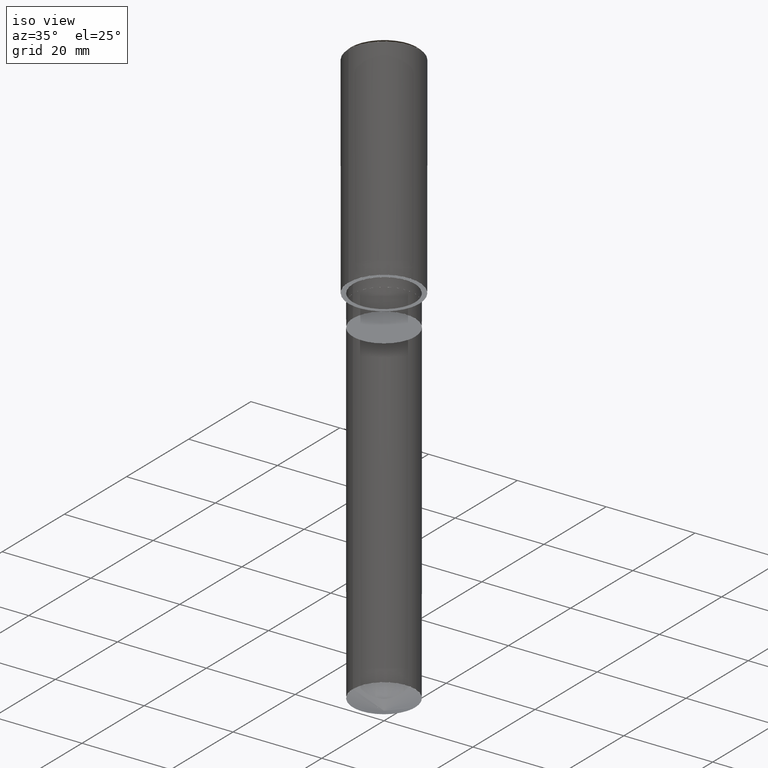
[diagram: clean part render]
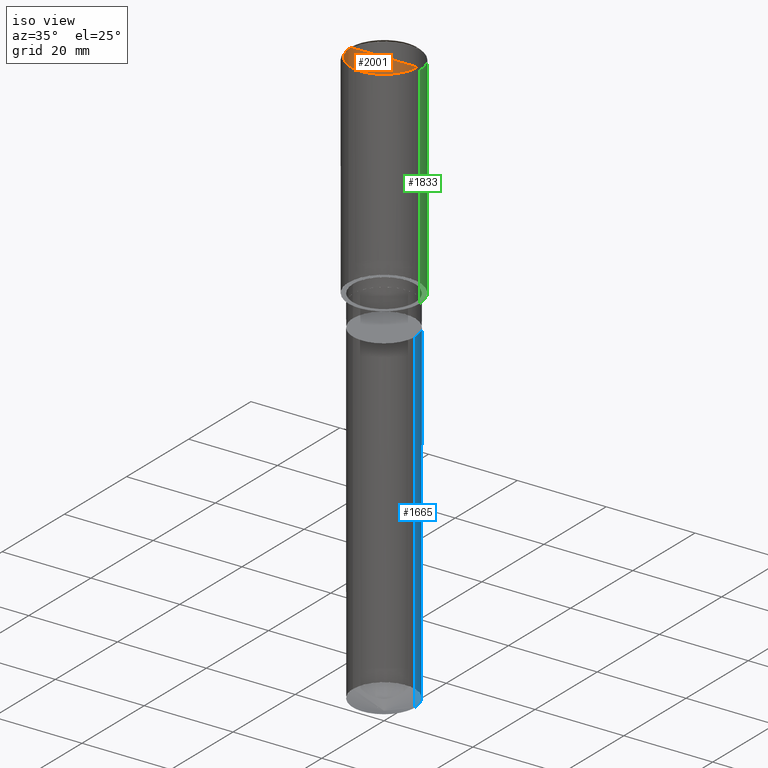
[diagram: same view with three faces highlighted in distinct colors, each labeled with its STEP entity id]
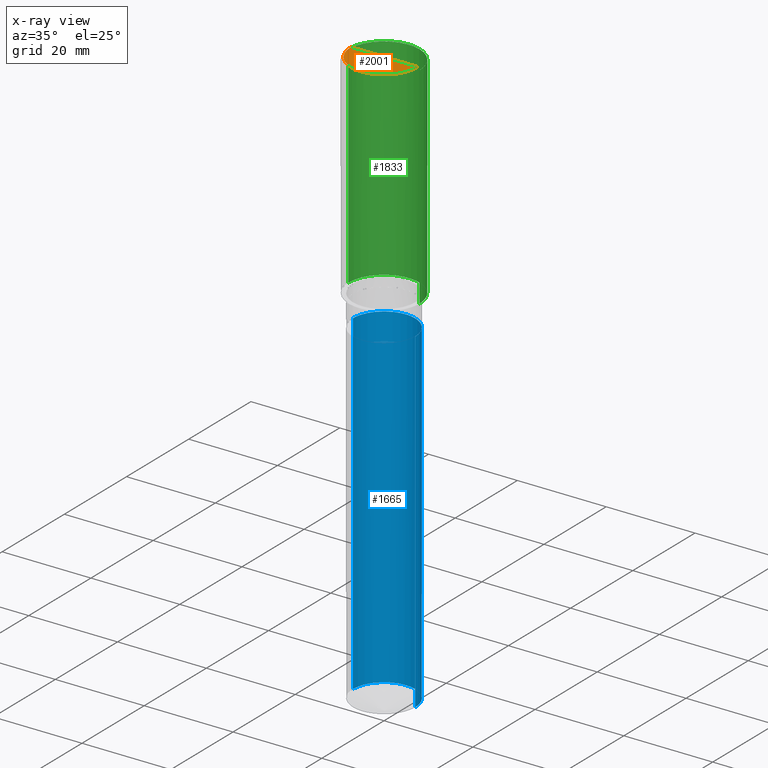
[diagram: x-ray of the same camera — body ghosted, the three highlighted faces saturated]
A machine part, iso view with three faces highlighted in distinct colors.
The next image is the same camera in x-ray (body ghosted, the three faces saturated) — at least one of them is partly hidden behind the body in this view.
Their STEP definitions:

[orange] entity #2001 — the highlighted face is a freeform B-spline surface patch.
#1604=CARTESIAN_POINT('',(7.5,0.0,48.0));
#1608=CARTESIAN_POINT('',(-7.5,0.0,48.0));
#1609=CARTESIAN_POINT('',(0.0,0.0,48.0));
#1622=CARTESIAN_POINT('',(-7.5,-7.5,48.0));
#1623=CARTESIAN_POINT('',(0.0,-7.5,48.0));
#1624=CARTESIAN_POINT('',(7.5,-7.5,48.0));
#1986=(
BOUNDED_SURFACE()
B_SPLINE_SURFACE(1,2,(
(#1608,#1622,#1623,#1624,#1604),
(#1609,#1609,#1609,#1609,#1609)
), .UNSPECIFIED.,.F.,.F.,.F.)
B_SPLINE_SURFACE_WITH_KNOTS((2,2),(3,2,3),(
0.0,1.0),(
0.0,0.5,1.0), .UNSPECIFIED.)
GEOMETRIC_REPRESENTATION_ITEM()
RATIONAL_B_SPLINE_SURFACE(((1.0,0.707106781187,1.0,0.707106781187,1.0),
(1.0,0.707106781187,1.0,0.707106781187,1.0)
))
REPRESENTATION_ITEM('')
SURFACE()
);
#1987=(
BOUNDED_CURVE()
B_SPLINE_CURVE(2,(#1604,#1624,#1623,#1622,#1608),.UNSPECIFIED.,.F.,.F.)
B_SPLINE_CURVE_WITH_KNOTS((3,2,3),
(0.0,0.5,1.0),.UNSPECIFIED.)
CURVE()
GEOMETRIC_REPRESENTATION_ITEM()
RATIONAL_B_SPLINE_CURVE((1.0,0.707106781187,1.0,0.707106781187,1.0))
REPRESENTATION_ITEM('')
);
#1988=(
BOUNDED_CURVE()
B_SPLINE_CURVE(1,(#1608,#1609),.UNSPECIFIED.,.F.,.F.)
B_SPLINE_CURVE_WITH_KNOTS((2,2),
(0.0,1.0),.UNSPECIFIED.)
CURVE()
GEOMETRIC_REPRESENTATION_ITEM()
RATIONAL_B_SPLINE_CURVE((1.0,1.0))
REPRESENTATION_ITEM('')
);
#1989=(
BOUNDED_CURVE()
B_SPLINE_CURVE(1,(#1609,#1604),.UNSPECIFIED.,.F.,.F.)
B_SPLINE_CURVE_WITH_KNOTS((2,2),
(0.0,1.0),.UNSPECIFIED.)
CURVE()
GEOMETRIC_REPRESENTATION_ITEM()
RATIONAL_B_SPLINE_CURVE((1.0,1.0))
REPRESENTATION_ITEM('')
);
#1990=VERTEX_POINT('',#1604);
#1991=VERTEX_POINT('',#1608);
#1992=VERTEX_POINT('',#1609);
#1993=EDGE_CURVE('',#1990,#1991,#1987,.T.);
#1994=EDGE_CURVE('',#1991,#1992,#1988,.T.);
#1995=EDGE_CURVE('',#1992,#1990,#1989,.T.);
#1996=ORIENTED_EDGE('',*,*,#1993,.T.);
#1997=ORIENTED_EDGE('',*,*,#1994,.T.);
#1998=ORIENTED_EDGE('',*,*,#1995,.T.);
#1999=EDGE_LOOP('',(#1996,#1997,#1998));
#2000=FACE_OUTER_BOUND('',#1999,.T.);
#2001=ADVANCED_FACE('',(#2000),#1986,.T.);

[blue] entity #1665 — the highlighted face is a freeform B-spline surface patch.
#1567=CARTESIAN_POINT('',(7.0,0.0,-82.452208360137));
#1568=CARTESIAN_POINT('',(7.0,7.0,-82.452208360137));
#1569=CARTESIAN_POINT('',(0.0,7.0,-82.452208360137));
#1570=CARTESIAN_POINT('',(-7.0,7.0,-82.452208360137));
#1571=CARTESIAN_POINT('',(-7.0,0.0,-82.452208360137));
#1572=CARTESIAN_POINT('',(7.0,0.0,-7.0));
#1573=CARTESIAN_POINT('',(7.0,7.0,-7.0));
#1574=CARTESIAN_POINT('',(0.0,7.0,-7.0));
#1575=CARTESIAN_POINT('',(-7.0,7.0,-7.0));
#1576=CARTESIAN_POINT('',(-7.0,0.0,-7.0));
#1646=(
BOUNDED_SURFACE()
B_SPLINE_SURFACE(1,2,(
(#1567,#1568,#1569,#1570,#1571),
(#1572,#1573,#1574,#1575,#1576)
), .UNSPECIFIED.,.F.,.F.,.F.)
B_SPLINE_SURFACE_WITH_KNOTS((2,2),(3,2,3),(
0.0,1.0),(
0.0,0.5,1.0), .UNSPECIFIED.)
GEOMETRIC_REPRESENTATION_ITEM()
RATIONAL_B_SPLINE_SURFACE(((1.0,0.707106781187,1.0,0.707106781187,1.0),
(1.0,0.707106781187,1.0,0.707106781187,1.0)
))
REPRESENTATION_ITEM('')
SURFACE()
);
#1647=(
BOUNDED_CURVE()
B_SPLINE_CURVE(2,(#1571,#1570,#1569,#1568,#1567),.UNSPECIFIED.,.F.,.F.)
B_SPLINE_CURVE_WITH_KNOTS((3,2,3),
(0.0,0.5,1.0),.UNSPECIFIED.)
CURVE()
GEOMETRIC_REPRESENTATION_ITEM()
RATIONAL_B_SPLINE_CURVE((1.0,0.707106781187,1.0,0.707106781187,1.0))
REPRESENTATION_ITEM('')
);
#1648=(
BOUNDED_CURVE()
B_SPLINE_CURVE(1,(#1567,#1572),.UNSPECIFIED.,.F.,.F.)
B_SPLINE_CURVE_WITH_KNOTS((2,2),
(0.0,1.0),.UNSPECIFIED.)
CURVE()
GEOMETRIC_REPRESENTATION_ITEM()
RATIONAL_B_SPLINE_CURVE((1.0,1.0))
REPRESENTATION_ITEM('')
);
#1649=(
BOUNDED_CURVE()
B_SPLINE_CURVE(2,(#1572,#1573,#1574,#1575,#1576),.UNSPECIFIED.,.F.,.F.)
B_SPLINE_CURVE_WITH_KNOTS((3,2,3),
(0.0,0.5,1.0),.UNSPECIFIED.)
CURVE()
GEOMETRIC_REPRESENTATION_ITEM()
RATIONAL_B_SPLINE_CURVE((1.0,0.707106781187,1.0,0.707106781187,1.0))
REPRESENTATION_ITEM('')
);
#1650=(
BOUNDED_CURVE()
B_SPLINE_CURVE(1,(#1576,#1571),.UNSPECIFIED.,.F.,.F.)
B_SPLINE_CURVE_WITH_KNOTS((2,2),
(0.0,1.0),.UNSPECIFIED.)
CURVE()
GEOMETRIC_REPRESENTATION_ITEM()
RATIONAL_B_SPLINE_CURVE((1.0,1.0))
REPRESENTATION_ITEM('')
);
#1651=VERTEX_POINT('',#1567);
#1652=VERTEX_POINT('',#1571);
#1653=VERTEX_POINT('',#1572);
#1654=VERTEX_POINT('',#1576);
#1655=EDGE_CURVE('',#1652,#1651,#1647,.T.);
#1656=EDGE_CURVE('',#1651,#1653,#1648,.T.);
#1657=EDGE_CURVE('',#1653,#1654,#1649,.T.);
#1658=EDGE_CURVE('',#1654,#1652,#1650,.T.);
#1659=ORIENTED_EDGE('',*,*,#1655,.T.);
#1660=ORIENTED_EDGE('',*,*,#1656,.T.);
#1661=ORIENTED_EDGE('',*,*,#1657,.T.);
#1662=ORIENTED_EDGE('',*,*,#1658,.T.);
#1663=EDGE_LOOP('',(#1659,#1660,#1661,#1662));
#1664=FACE_OUTER_BOUND('',#1663,.T.);
#1665=ADVANCED_FACE('',(#1664),#1646,.T.);

[green] entity #1833 — the highlighted face is a freeform B-spline surface patch.
#1594=CARTESIAN_POINT('',(8.0,0.0,0.0));
#1595=CARTESIAN_POINT('',(8.0,8.0,0.0));
#1596=CARTESIAN_POINT('',(0.0,8.0,0.0));
#1597=CARTESIAN_POINT('',(-8.0,8.0,0.0));
#1598=CARTESIAN_POINT('',(-8.0,0.0,0.0));
#1599=CARTESIAN_POINT('',(8.0,0.0,47.5));
#1600=CARTESIAN_POINT('',(8.0,8.0,47.5));
#1601=CARTESIAN_POINT('',(0.0,8.0,47.5));
#1602=CARTESIAN_POINT('',(-8.0,8.0,47.5));
#1603=CARTESIAN_POINT('',(-8.0,0.0,47.5));
#1814=(
BOUNDED_SURFACE()
B_SPLINE_SURFACE(1,2,(
(#1594,#1595,#1596,#1597,#1598),
(#1599,#1600,#1601,#1602,#1603)
), .UNSPECIFIED.,.F.,.F.,.F.)
B_SPLINE_SURFACE_WITH_KNOTS((2,2),(3,2,3),(
0.0,1.0),(
0.0,0.5,1.0), .UNSPECIFIED.)
GEOMETRIC_REPRESENTATION_ITEM()
RATIONAL_B_SPLINE_SURFACE(((1.0,0.707106781187,1.0,0.707106781187,1.0),
(1.0,0.707106781187,1.0,0.707106781187,1.0)
))
REPRESENTATION_ITEM('')
SURFACE()
);
#1815=(
BOUNDED_CURVE()
B_SPLINE_CURVE(2,(#1598,#1597,#1596,#1595,#1594),.UNSPECIFIED.,.F.,.F.)
B_SPLINE_CURVE_WITH_KNOTS((3,2,3),
(0.0,0.5,1.0),.UNSPECIFIED.)
CURVE()
GEOMETRIC_REPRESENTATION_ITEM()
RATIONAL_B_SPLINE_CURVE((1.0,0.707106781187,1.0,0.707106781187,1.0))
REPRESENTATION_ITEM('')
);
#1816=(
BOUNDED_CURVE()
B_SPLINE_CURVE(1,(#1594,#1599),.UNSPECIFIED.,.F.,.F.)
B_SPLINE_CURVE_WITH_KNOTS((2,2),
(0.0,1.0),.UNSPECIFIED.)
CURVE()
GEOMETRIC_REPRESENTATION_ITEM()
RATIONAL_B_SPLINE_CURVE((1.0,1.0))
REPRESENTATION_ITEM('')
);
#1817=(
BOUNDED_CURVE()
B_SPLINE_CURVE(2,(#1599,#1600,#1601,#1602,#1603),.UNSPECIFIED.,.F.,.F.)
B_SPLINE_CURVE_WITH_KNOTS((3,2,3),
(0.0,0.5,1.0),.UNSPECIFIED.)
CURVE()
GEOMETRIC_REPRESENTATION_ITEM()
RATIONAL_B_SPLINE_CURVE((1.0,0.707106781187,1.0,0.707106781187,1.0))
REPRESENTATION_ITEM('')
);
#1818=(
BOUNDED_CURVE()
B_SPLINE_CURVE(1,(#1603,#1598),.UNSPECIFIED.,.F.,.F.)
B_SPLINE_CURVE_WITH_KNOTS((2,2),
(0.0,1.0),.UNSPECIFIED.)
CURVE()
GEOMETRIC_REPRESENTATION_ITEM()
RATIONAL_B_SPLINE_CURVE((1.0,1.0))
REPRESENTATION_ITEM('')
);
#1819=VERTEX_POINT('',#1594);
#1820=VERTEX_POINT('',#1598);
#1821=VERTEX_POINT('',#1599);
#1822=VERTEX_POINT('',#1603);
#1823=EDGE_CURVE('',#1820,#1819,#1815,.T.);
#1824=EDGE_CURVE('',#1819,#1821,#1816,.T.);
#1825=EDGE_CURVE('',#1821,#1822,#1817,.T.);
#1826=EDGE_CURVE('',#1822,#1820,#1818,.T.);
#1827=ORIENTED_EDGE('',*,*,#1823,.T.);
#1828=ORIENTED_EDGE('',*,*,#1824,.T.);
#1829=ORIENTED_EDGE('',*,*,#1825,.T.);
#1830=ORIENTED_EDGE('',*,*,#1826,.T.);
#1831=EDGE_LOOP('',(#1827,#1828,#1829,#1830));
#1832=FACE_OUTER_BOUND('',#1831,.T.);
#1833=ADVANCED_FACE('',(#1832),#1814,.T.);